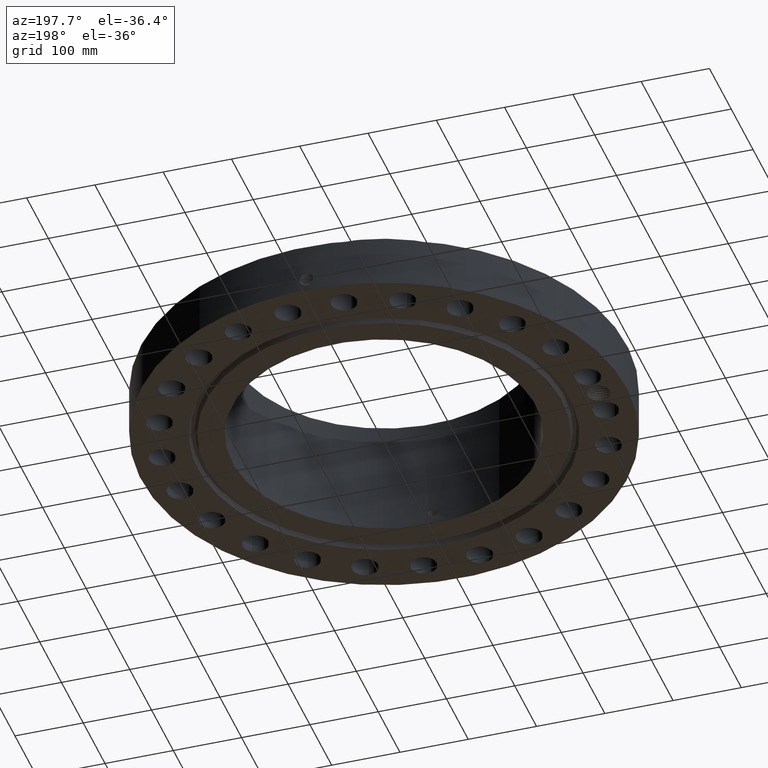
[diagram: clean part render]
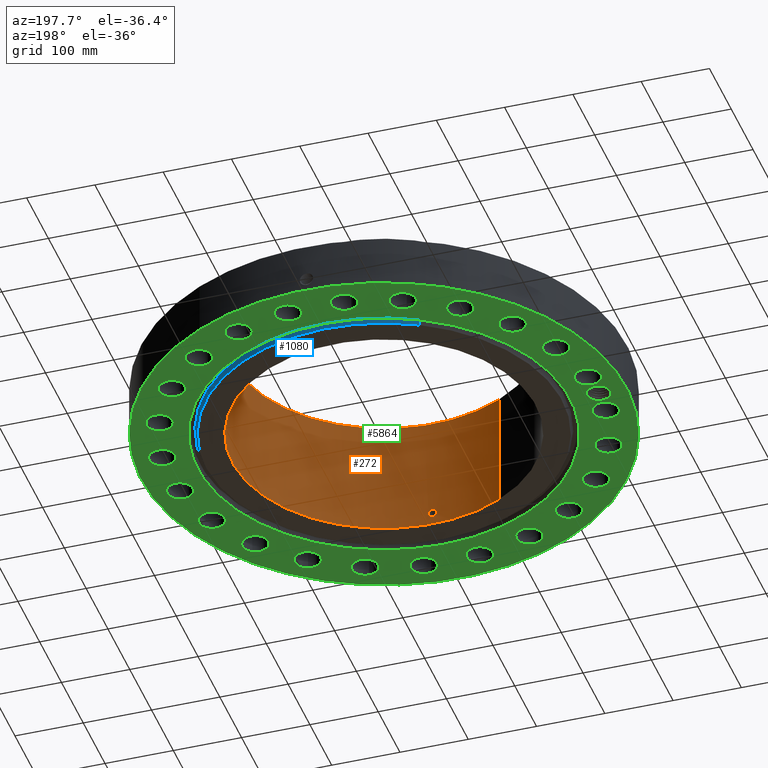
[diagram: same view with three faces highlighted in distinct colors, each labeled with its STEP entity id]
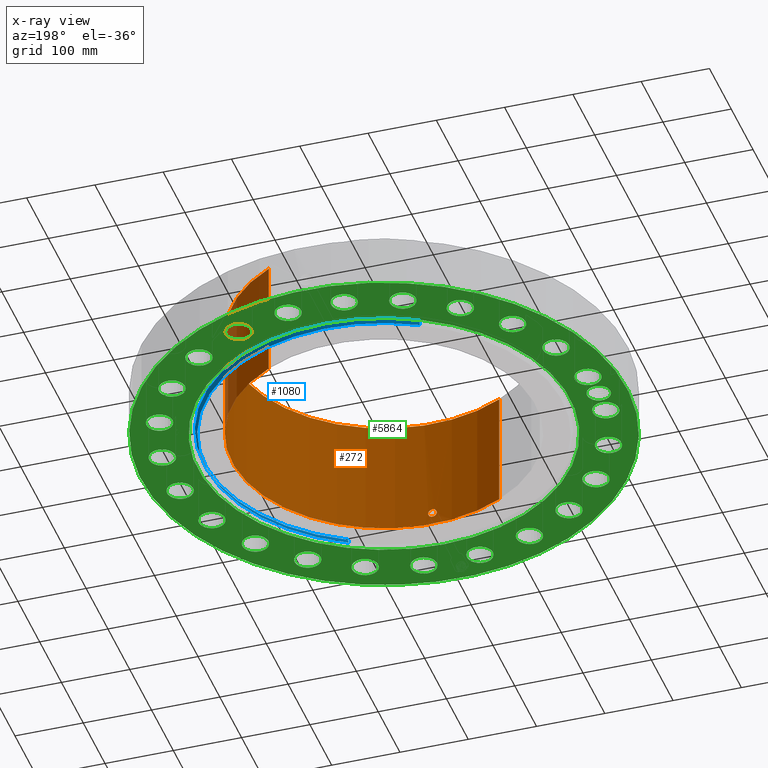
[diagram: x-ray of the same camera — body ghosted, the three highlighted faces saturated]
A machine part, auxiliary view with three faces highlighted in distinct colors.
The next image is the same camera in x-ray (body ghosted, the three faces saturated) — at least one of them is partly hidden behind the body in this view.
Their STEP definitions:

[orange] entity #272 — the highlighted cylindrical surface (partial cylindrical patch) has radius 222.25 mm, axis along (0, 0, -1).
#232=AXIS2_PLACEMENT_3D('Cylinder Axis2P3D',#229,#230,#231) ;
#236=AXIS2_PLACEMENT_3D('Circle Axis2P3D',#234,#235,$) ;
#252=AXIS2_PLACEMENT_3D('Circle Axis2P3D',#250,#251,$) ;
#81=CARTESIAN_POINT('Control Point',(0.219395640473,-8.74724902775,0.630143615351)) ;
#82=CARTESIAN_POINT('Control Point',(0.194443068215,-8.74787488001,0.584468238207)) ;
#83=CARTESIAN_POINT('Control Point',(0.157605411722,-8.74870979614,0.545288576823)) ;
#84=CARTESIAN_POINT('Control Point',(0.111108390081,-8.74952178194,0.516757099863)) ;
#85=CARTESIAN_POINT('Control Point',(0.0336737818535,-8.75016782476,0.494117474229)) ;
#86=CARTESIAN_POINT('Control Point',(-0.0446708320962,-8.74994457885,0.501943590949)) ;
#87=CARTESIAN_POINT('Control Point',(-0.0703005140155,-8.74977127194,0.50795617086)) ;
#88=CARTESIAN_POINT('Control Point',(-0.143956505793,-8.74900541131,0.535788017715)) ;
#89=CARTESIAN_POINT('Control Point',(-0.20324412424,-8.74775531117,0.590502433181)) ;
#90=CARTESIAN_POINT('Control Point',(-0.232209408005,-8.74693537828,0.636741442085)) ;
#91=CARTESIAN_POINT('Control Point',(-0.255840465174,-8.7462613379,0.714888138529)) ;
#92=CARTESIAN_POINT('Control Point',(-0.248282858358,-8.74647673032,0.794252980592)) ;
#93=CARTESIAN_POINT('Control Point',(-0.242049088894,-8.7466569734,0.820815555471)) ;
#94=CARTESIAN_POINT('Control Point',(-0.232315522118,-8.74692497551,0.846206699938)) ;
#95=CARTESIAN_POINT('Control Point',(-0.219395640473,-8.74724902775,0.869856384655)) ;
#96=CARTESIAN_POINT('Vertex',(0.219395640473,-8.74724902775,0.630143615351)) ;
#98=CARTESIAN_POINT('Vertex',(-0.219395640473,-8.74724902775,0.869856384655)) ;
#206=CARTESIAN_POINT('Control Point',(-0.219395640473,-8.74724902775,0.869856384655)) ;
#207=CARTESIAN_POINT('Control Point',(-0.194443068215,-8.74787488001,0.915531761799)) ;
#208=CARTESIAN_POINT('Control Point',(-0.157605411722,-8.74870979614,0.954711423182)) ;
#209=CARTESIAN_POINT('Control Point',(-0.111108390079,-8.74952178194,0.983242900143)) ;
#210=CARTESIAN_POINT('Control Point',(-0.0336737818526,-8.75016782476,1.00588252578)) ;
#211=CARTESIAN_POINT('Control Point',(0.0446708320958,-8.74994457885,0.998056409057)) ;
#212=CARTESIAN_POINT('Control Point',(0.0703005140179,-8.74977127194,0.992043829145)) ;
#213=CARTESIAN_POINT('Control Point',(0.143956505788,-8.74900541131,0.964211982292)) ;
#214=CARTESIAN_POINT('Control Point',(0.203244124231,-8.74775531117,0.909497566833)) ;
#215=CARTESIAN_POINT('Control Point',(0.23220940801,-8.74693537828,0.863258557908)) ;
#216=CARTESIAN_POINT('Control Point',(0.255840465151,-8.7462613379,0.785111861543)) ;
#217=CARTESIAN_POINT('Control Point',(0.248282858372,-8.74647673032,0.705747019562)) ;
#218=CARTESIAN_POINT('Control Point',(0.24204908884,-8.7466569734,0.679184444395)) ;
#219=CARTESIAN_POINT('Control Point',(0.232315522083,-8.74692497551,0.653793300003)) ;
#220=CARTESIAN_POINT('Control Point',(0.219395640473,-8.74724902775,0.630143615351)) ;
#229=CARTESIAN_POINT('Axis2P3D Location',(0.,0.,3.40600000001)) ;
#234=CARTESIAN_POINT('Axis2P3D Location',(0.,0.,6.81200000003)) ;
#238=CARTESIAN_POINT('Vertex',(4.1949734628,7.67884741657,6.81200000003)) ;
#240=CARTESIAN_POINT('Vertex',(-4.1949734628,-7.67884741657,6.81200000003)) ;
#243=CARTESIAN_POINT('Line Origine',(4.1949734628,7.67884741657,3.40600000001)) ;
#247=CARTESIAN_POINT('Vertex',(4.1949734628,7.67884741657,-4.58775624664E-014)) ;
#250=CARTESIAN_POINT('Axis2P3D Location',(0.,0.,-4.69965274046E-014)) ;
#254=CARTESIAN_POINT('Vertex',(-4.1949734628,-7.67884741657,-4.58775624664E-014)) ;
#257=CARTESIAN_POINT('Line Origine',(-4.1949734628,-7.67884741657,3.40600000001)) ;
#230=DIRECTION('Axis2P3D Direction',(0.,0.,-0.0393700787402)) ;
#231=DIRECTION('Axis2P3D XDirection',(-0.0188750212049,-0.0345504945626,0.)) ;
#235=DIRECTION('Axis2P3D Direction',(0.,0.,-0.0393700787402)) ;
#244=DIRECTION('Vector Direction',(0.,0.,-0.0393700787402)) ;
#251=DIRECTION('Axis2P3D Direction',(0.,0.,-0.0393700787402)) ;
#258=DIRECTION('Vector Direction',(0.,0.,-0.0393700787402)) ;
#245=VECTOR('Line Direction',#244,0.0393700787402) ;
#259=VECTOR('Line Direction',#258,0.0393700787402) ;
#263=ORIENTED_EDGE('',*,*,#242,.F.) ;
#264=ORIENTED_EDGE('',*,*,#249,.T.) ;
#265=ORIENTED_EDGE('',*,*,#256,.T.) ;
#266=ORIENTED_EDGE('',*,*,#261,.F.) ;
#269=ORIENTED_EDGE('',*,*,#100,.F.) ;
#270=ORIENTED_EDGE('',*,*,#221,.F.) ;
#271=FACE_BOUND('',#268,.T.) ;
#272=ADVANCED_FACE('PartBody',(#267,#271),#233,.F.) ;
#80=B_SPLINE_CURVE_WITH_KNOTS('',5,(#81,#82,#83,#84,#85,#86,#87,#88,#89,#90,#91,#92,#93,#94,#95),.UNSPECIFIED.,.F.,.U.,(6,3,3,3,6),(0.,9.34855036569,14.022859523,23.3728957243,28.2133651967),.UNSPECIFIED.) ;
#205=B_SPLINE_CURVE_WITH_KNOTS('',5,(#206,#207,#208,#209,#210,#211,#212,#213,#214,#215,#216,#217,#218,#219,#220),.UNSPECIFIED.,.F.,.U.,(6,3,3,3,6),(0.,9.34855036562,14.0228595228,23.372895723,28.213365182),.UNSPECIFIED.) ;
#237=CIRCLE('generated circle',#236,8.75000000003) ;
#253=CIRCLE('generated circle',#252,8.75000000003) ;
#233=CYLINDRICAL_SURFACE('generated cylinder',#232,8.75000000003) ;
#100=EDGE_CURVE('',#97,#99,#80,.T.) ;
#221=EDGE_CURVE('',#99,#97,#205,.T.) ;
#242=EDGE_CURVE('',#239,#241,#237,.T.) ;
#249=EDGE_CURVE('',#239,#248,#246,.T.) ;
#256=EDGE_CURVE('',#248,#255,#253,.T.) ;
#261=EDGE_CURVE('',#241,#255,#260,.T.) ;
#262=EDGE_LOOP('',(#263,#264,#265,#266)) ;
#268=EDGE_LOOP('',(#269,#270)) ;
#267=FACE_OUTER_BOUND('',#262,.T.) ;
#246=LINE('Line',#243,#245) ;
#260=LINE('Line',#257,#259) ;
#97=VERTEX_POINT('',#96) ;
#99=VERTEX_POINT('',#98) ;
#239=VERTEX_POINT('',#238) ;
#241=VERTEX_POINT('',#240) ;
#248=VERTEX_POINT('',#247) ;
#255=VERTEX_POINT('',#254) ;

[blue] entity #1080 — the highlighted conical surface has half-angle 23 deg.
#602=AXIS2_PLACEMENT_3D('Circle Axis2P3D',#600,#601,$) ;
#1053=AXIS2_PLACEMENT_3D('Cone Axis2P3D',#1050,#1051,#1052) ;
#1064=AXIS2_PLACEMENT_3D('Circle Axis2P3D',#1062,#1063,$) ;
#600=CARTESIAN_POINT('Axis2P3D Location',(1.1189649382E-015,1.1189649382E-015,0.)) ;
#604=CARTESIAN_POINT('Vertex',(-4.92154286656,9.00882378912,-3.49676543189E-017)) ;
#606=CARTESIAN_POINT('Vertex',(4.92154286656,-9.00882378912,0.)) ;
#1050=CARTESIAN_POINT('Axis2P3D Location',(0.,0.,-0.0600000000002)) ;
#1055=CARTESIAN_POINT('Line Origine',(-4.95142967067,9.06353121709,0.146860966928)) ;
#1059=CARTESIAN_POINT('Vertex',(-4.98131647478,9.11823864505,0.293721933856)) ;
#1062=CARTESIAN_POINT('Axis2P3D Location',(0.,0.,0.293721933856)) ;
#1066=CARTESIAN_POINT('Vertex',(4.98131647478,-9.11823864505,0.293721933856)) ;
#1069=CARTESIAN_POINT('Line Origine',(4.95142967067,-9.06353121709,0.146860966928)) ;
#601=DIRECTION('Axis2P3D Direction',(0.,0.,-0.0393700787402)) ;
#1051=DIRECTION('Axis2P3D Direction',(0.,0.,0.0393700787402)) ;
#1052=DIRECTION('Axis2P3D XDirection',(-0.0188750212049,0.0345504945626,0.)) ;
#1056=DIRECTION('Vector Direction',(-0.00737505833565,0.0134999537303,0.0362403485611)) ;
#1063=DIRECTION('Axis2P3D Direction',(0.,0.,0.0393700787402)) ;
#1070=DIRECTION('Vector Direction',(0.00737505833565,-0.0134999537303,0.0362403485611)) ;
#1057=VECTOR('Line Direction',#1056,0.0393700787402) ;
#1071=VECTOR('Line Direction',#1070,0.0393700787402) ;
#1075=ORIENTED_EDGE('',*,*,#1061,.F.) ;
#1076=ORIENTED_EDGE('',*,*,#1068,.F.) ;
#1077=ORIENTED_EDGE('',*,*,#1073,.T.) ;
#1078=ORIENTED_EDGE('',*,*,#608,.F.) ;
#1080=ADVANCED_FACE('PartBody',(#1079),#1054,.T.) ;
#603=CIRCLE('generated circle',#602,10.2655) ;
#1065=CIRCLE('generated circle',#1064,10.3901775639) ;
#1054=CONICAL_SURFACE('Cone',#1053,10.2400315111,0.401425727959) ;
#608=EDGE_CURVE('',#605,#607,#603,.T.) ;
#1061=EDGE_CURVE('',#1060,#605,#1058,.F.) ;
#1068=EDGE_CURVE('',#1067,#1060,#1065,.T.) ;
#1073=EDGE_CURVE('',#1067,#607,#1072,.F.) ;
#1074=EDGE_LOOP('',(#1075,#1076,#1077,#1078)) ;
#1079=FACE_OUTER_BOUND('',#1074,.T.) ;
#1058=LINE('Line',#1055,#1057) ;
#1072=LINE('Line',#1069,#1071) ;
#605=VERTEX_POINT('',#604) ;
#607=VERTEX_POINT('',#606) ;
#1060=VERTEX_POINT('',#1059) ;
#1067=VERTEX_POINT('',#1066) ;

[green] entity #5864 — the highlighted planar face has unit normal (0, 0, -1).
#598=AXIS2_PLACEMENT_3D('Plane Axis2P3D',#595,#596,#597) ;
#3756=AXIS2_PLACEMENT_3D('Circle Axis2P3D',#3754,#3755,$) ;
#3782=AXIS2_PLACEMENT_3D('Circle Axis2P3D',#3780,#3781,$) ;
#4055=AXIS2_PLACEMENT_3D('Circle Axis2P3D',#4053,#4054,$) ;
#4168=AXIS2_PLACEMENT_3D('Circle Axis2P3D',#4166,#4167,$) ;
#4390=AXIS2_PLACEMENT_3D('Circle Axis2P3D',#4388,#4389,$) ;
#4409=AXIS2_PLACEMENT_3D('Circle Axis2P3D',#4407,#4408,$) ;
#4433=AXIS2_PLACEMENT_3D('Circle Axis2P3D',#4431,#4432,$) ;
#4452=AXIS2_PLACEMENT_3D('Circle Axis2P3D',#4450,#4451,$) ;
#4476=AXIS2_PLACEMENT_3D('Circle Axis2P3D',#4474,#4475,$) ;
#4495=AXIS2_PLACEMENT_3D('Circle Axis2P3D',#4493,#4494,$) ;
#4519=AXIS2_PLACEMENT_3D('Circle Axis2P3D',#4517,#4518,$) ;
#4538=AXIS2_PLACEMENT_3D('Circle Axis2P3D',#4536,#4537,$) ;
#4562=AXIS2_PLACEMENT_3D('Circle Axis2P3D',#4560,#4561,$) ;
#4581=AXIS2_PLACEMENT_3D('Circle Axis2P3D',#4579,#4580,$) ;
#4605=AXIS2_PLACEMENT_3D('Circle Axis2P3D',#4603,#4604,$) ;
#4624=AXIS2_PLACEMENT_3D('Circle Axis2P3D',#4622,#4623,$) ;
#4648=AXIS2_PLACEMENT_3D('Circle Axis2P3D',#4646,#4647,$) ;
#4667=AXIS2_PLACEMENT_3D('Circle Axis2P3D',#4665,#4666,$) ;
#4691=AXIS2_PLACEMENT_3D('Circle Axis2P3D',#4689,#4690,$) ;
#4710=AXIS2_PLACEMENT_3D('Circle Axis2P3D',#4708,#4709,$) ;
#4734=AXIS2_PLACEMENT_3D('Circle Axis2P3D',#4732,#4733,$) ;
#4753=AXIS2_PLACEMENT_3D('Circle Axis2P3D',#4751,#4752,$) ;
#4777=AXIS2_PLACEMENT_3D('Circle Axis2P3D',#4775,#4776,$) ;
#4796=AXIS2_PLACEMENT_3D('Circle Axis2P3D',#4794,#4795,$) ;
#4820=AXIS2_PLACEMENT_3D('Circle Axis2P3D',#4818,#4819,$) ;
#4839=AXIS2_PLACEMENT_3D('Circle Axis2P3D',#4837,#4838,$) ;
#4863=AXIS2_PLACEMENT_3D('Circle Axis2P3D',#4861,#4862,$) ;
#4882=AXIS2_PLACEMENT_3D('Circle Axis2P3D',#4880,#4881,$) ;
#4906=AXIS2_PLACEMENT_3D('Circle Axis2P3D',#4904,#4905,$) ;
#4925=AXIS2_PLACEMENT_3D('Circle Axis2P3D',#4923,#4924,$) ;
#4949=AXIS2_PLACEMENT_3D('Circle Axis2P3D',#4947,#4948,$) ;
#4968=AXIS2_PLACEMENT_3D('Circle Axis2P3D',#4966,#4967,$) ;
#4992=AXIS2_PLACEMENT_3D('Circle Axis2P3D',#4990,#4991,$) ;
#5011=AXIS2_PLACEMENT_3D('Circle Axis2P3D',#5009,#5010,$) ;
#5035=AXIS2_PLACEMENT_3D('Circle Axis2P3D',#5033,#5034,$) ;
#5054=AXIS2_PLACEMENT_3D('Circle Axis2P3D',#5052,#5053,$) ;
#5078=AXIS2_PLACEMENT_3D('Circle Axis2P3D',#5076,#5077,$) ;
#5097=AXIS2_PLACEMENT_3D('Circle Axis2P3D',#5095,#5096,$) ;
#5121=AXIS2_PLACEMENT_3D('Circle Axis2P3D',#5119,#5120,$) ;
#5140=AXIS2_PLACEMENT_3D('Circle Axis2P3D',#5138,#5139,$) ;
#5164=AXIS2_PLACEMENT_3D('Circle Axis2P3D',#5162,#5163,$) ;
#5183=AXIS2_PLACEMENT_3D('Circle Axis2P3D',#5181,#5182,$) ;
#5207=AXIS2_PLACEMENT_3D('Circle Axis2P3D',#5205,#5206,$) ;
#5226=AXIS2_PLACEMENT_3D('Circle Axis2P3D',#5224,#5225,$) ;
#5250=AXIS2_PLACEMENT_3D('Circle Axis2P3D',#5248,#5249,$) ;
#5269=AXIS2_PLACEMENT_3D('Circle Axis2P3D',#5267,#5268,$) ;
#5293=AXIS2_PLACEMENT_3D('Circle Axis2P3D',#5291,#5292,$) ;
#5312=AXIS2_PLACEMENT_3D('Circle Axis2P3D',#5310,#5311,$) ;
#5336=AXIS2_PLACEMENT_3D('Circle Axis2P3D',#5334,#5335,$) ;
#5355=AXIS2_PLACEMENT_3D('Circle Axis2P3D',#5353,#5354,$) ;
#5379=AXIS2_PLACEMENT_3D('Circle Axis2P3D',#5377,#5378,$) ;
#5398=AXIS2_PLACEMENT_3D('Circle Axis2P3D',#5396,#5397,$) ;
#5747=AXIS2_PLACEMENT_3D('Circle Axis2P3D',#5745,#5746,$) ;
#5754=AXIS2_PLACEMENT_3D('Circle Axis2P3D',#5752,#5753,$) ;
#595=CARTESIAN_POINT('Axis2P3D Location',(0.,8.75000000003,0.)) ;
#3754=CARTESIAN_POINT('Axis2P3D Location',(0.,0.,-3.49676543189E-017)) ;
#3758=CARTESIAN_POINT('Vertex',(-5.14639344417,9.42041001065,-3.49676543189E-017)) ;
#3760=CARTESIAN_POINT('Vertex',(5.14639344417,-9.42041001065,-3.49676543189E-017)) ;
#3780=CARTESIAN_POINT('Axis2P3D Location',(0.,0.,-3.49676543189E-017)) ;
#4053=CARTESIAN_POINT('Axis2P3D Location',(0.,0.,1.67844740731E-015)) ;
#4057=CARTESIAN_POINT('Vertex',(-6.71195754049,-12.2861558665,1.67844740731E-015)) ;
#4059=CARTESIAN_POINT('Vertex',(6.71195754049,12.2861558665,1.67844740731E-015)) ;
#4166=CARTESIAN_POINT('Axis2P3D Location',(0.,0.,1.67844740731E-015)) ;
#4385=CARTESIAN_POINT('Vertex',(12.927317081,-1.97483078268,0.)) ;
#4388=CARTESIAN_POINT('Axis2P3D Location',(12.2691301595,-1.61526162873,0.)) ;
#4392=CARTESIAN_POINT('Vertex',(11.6109432381,-1.25569247478,0.)) ;
#4407=CARTESIAN_POINT('Axis2P3D Location',(12.2691301595,-1.61526162873,0.)) ;
#4428=CARTESIAN_POINT('Vertex',(10.890312814,-4.21803903289,0.)) ;
#4431=CARTESIAN_POINT('Axis2P3D Location',(11.4330092149,-4.73570747554,0.)) ;
#4435=CARTESIAN_POINT('Vertex',(11.9757056157,-5.25337591818,0.)) ;
#4450=CARTESIAN_POINT('Axis2P3D Location',(11.4330092149,-4.73570747554,0.)) ;
#4471=CARTESIAN_POINT('Vertex',(9.42752556873,-6.89293320156,0.)) ;
#4474=CARTESIAN_POINT('Axis2P3D Location',(9.81774758614,-7.53342268401,0.)) ;
#4478=CARTESIAN_POINT('Vertex',(10.2079696036,-8.17391216647,0.)) ;
#4493=CARTESIAN_POINT('Axis2P3D Location',(9.81774758614,-7.53342268401,0.)) ;
#4514=CARTESIAN_POINT('Vertex',(7.32226803566,-9.09808536365,0.)) ;
#4517=CARTESIAN_POINT('Axis2P3D Location',(7.53342268401,-9.81774758614,0.)) ;
#4521=CARTESIAN_POINT('Vertex',(7.74457733237,-10.5374098086,0.)) ;
#4536=CARTESIAN_POINT('Axis2P3D Location',(7.53342268401,-9.81774758614,0.)) ;
#4557=CARTESIAN_POINT('Vertex',(4.71801003657,-10.6832180435,0.)) ;
#4560=CARTESIAN_POINT('Axis2P3D Location',(4.73570747554,-11.4330092149,0.)) ;
#4564=CARTESIAN_POINT('Vertex',(4.75340491451,-12.1828003862,0.)) ;
#4579=CARTESIAN_POINT('Axis2P3D Location',(4.73570747554,-11.4330092149,0.)) ;
#4600=CARTESIAN_POINT('Vertex',(1.79222745037,-11.5403070685,0.)) ;
#4603=CARTESIAN_POINT('Axis2P3D Location',(1.61526162873,-12.2691301595,0.)) ;
#4607=CARTESIAN_POINT('Vertex',(1.43829580709,-12.9979532506,0.)) ;
#4622=CARTESIAN_POINT('Axis2P3D Location',(1.61526162873,-12.2691301595,0.)) ;
#4643=CARTESIAN_POINT('Vertex',(-1.25569247478,-11.6109432381,0.)) ;
#4646=CARTESIAN_POINT('Axis2P3D Location',(-1.61526162873,-12.2691301595,0.)) ;
#4650=CARTESIAN_POINT('Vertex',(-1.97483078268,-12.927317081,0.)) ;
#4665=CARTESIAN_POINT('Axis2P3D Location',(-1.61526162873,-12.2691301595,0.)) ;
#4686=CARTESIAN_POINT('Vertex',(-4.21803903289,-10.890312814,0.)) ;
#4689=CARTESIAN_POINT('Axis2P3D Location',(-4.73570747554,-11.4330092149,-1.1189649382E-015)) ;
#4693=CARTESIAN_POINT('Vertex',(-5.25337591818,-11.9757056157,-1.1189649382E-015)) ;
#4708=CARTESIAN_POINT('Axis2P3D Location',(-4.73570747554,-11.4330092149,-1.1189649382E-015)) ;
#4729=CARTESIAN_POINT('Vertex',(-6.89293320156,-9.42752556873,0.)) ;
#4732=CARTESIAN_POINT('Axis2P3D Location',(-7.53342268401,-9.81774758614,-2.23792987641E-015)) ;
#4736=CARTESIAN_POINT('Vertex',(-8.17391216647,-10.2079696036,-2.23792987641E-015)) ;
#4751=CARTESIAN_POINT('Axis2P3D Location',(-7.53342268401,-9.81774758614,-2.23792987641E-015)) ;
#4772=CARTESIAN_POINT('Vertex',(-9.09808536365,-7.32226803566,0.)) ;
#4775=CARTESIAN_POINT('Axis2P3D Location',(-9.81774758614,-7.53342268401,0.)) ;
#4779=CARTESIAN_POINT('Vertex',(-10.5374098086,-7.74457733237,0.)) ;
#4794=CARTESIAN_POINT('Axis2P3D Location',(-9.81774758614,-7.53342268401,0.)) ;
#4815=CARTESIAN_POINT('Vertex',(-10.6832180435,-4.71801003657,0.)) ;
#4818=CARTESIAN_POINT('Axis2P3D Location',(-11.4330092149,-4.73570747554,0.)) ;
#4822=CARTESIAN_POINT('Vertex',(-12.1828003862,-4.75340491451,0.)) ;
#4837=CARTESIAN_POINT('Axis2P3D Location',(-11.4330092149,-4.73570747554,0.)) ;
#4858=CARTESIAN_POINT('Vertex',(-11.5403070685,-1.79222745037,0.)) ;
#4861=CARTESIAN_POINT('Axis2P3D Location',(-12.2691301595,-1.61526162873,0.)) ;
#4865=CARTESIAN_POINT('Vertex',(-12.9979532506,-1.43829580709,0.)) ;
#4880=CARTESIAN_POINT('Axis2P3D Location',(-12.2691301595,-1.61526162873,0.)) ;
#4901=CARTESIAN_POINT('Vertex',(-11.6109432381,1.25569247478,0.)) ;
#4904=CARTESIAN_POINT('Axis2P3D Location',(-12.2691301595,1.61526162873,0.)) ;
#4908=CARTESIAN_POINT('Vertex',(-12.927317081,1.97483078268,0.)) ;
#4923=CARTESIAN_POINT('Axis2P3D Location',(-12.2691301595,1.61526162873,0.)) ;
#4944=CARTESIAN_POINT('Vertex',(-10.890312814,4.21803903289,0.)) ;
#4947=CARTESIAN_POINT('Axis2P3D Location',(-11.4330092149,4.73570747554,0.)) ;
#4951=CARTESIAN_POINT('Vertex',(-11.9757056157,5.25337591818,0.)) ;
#4966=CARTESIAN_POINT('Axis2P3D Location',(-11.4330092149,4.73570747554,0.)) ;
#4987=CARTESIAN_POINT('Vertex',(-9.42752556873,6.89293320156,0.)) ;
#4990=CARTESIAN_POINT('Axis2P3D Location',(-9.81774758614,7.53342268401,0.)) ;
#4994=CARTESIAN_POINT('Vertex',(-10.2079696036,8.17391216647,0.)) ;
#5009=CARTESIAN_POINT('Axis2P3D Location',(-9.81774758614,7.53342268401,0.)) ;
#5030=CARTESIAN_POINT('Vertex',(-7.32226803566,9.09808536365,0.)) ;
#5033=CARTESIAN_POINT('Axis2P3D Location',(-7.53342268401,9.81774758614,0.)) ;
#5037=CARTESIAN_POINT('Vertex',(-7.74457733237,10.5374098086,0.)) ;
#5052=CARTESIAN_POINT('Axis2P3D Location',(-7.53342268401,9.81774758614,0.)) ;
#5073=CARTESIAN_POINT('Vertex',(-4.71801003657,10.6832180435,0.)) ;
#5076=CARTESIAN_POINT('Axis2P3D Location',(-4.73570747554,11.4330092149,0.)) ;
#5080=CARTESIAN_POINT('Vertex',(-4.75340491451,12.1828003862,0.)) ;
#5095=CARTESIAN_POINT('Axis2P3D Location',(-4.73570747554,11.4330092149,0.)) ;
#5116=CARTESIAN_POINT('Vertex',(-1.79222745037,11.5403070685,0.)) ;
#5119=CARTESIAN_POINT('Axis2P3D Location',(-1.61526162873,12.2691301595,0.)) ;
#5123=CARTESIAN_POINT('Vertex',(-1.43829580709,12.9979532506,0.)) ;
#5138=CARTESIAN_POINT('Axis2P3D Location',(-1.61526162873,12.2691301595,0.)) ;
#5159=CARTESIAN_POINT('Vertex',(1.25569247478,11.6109432381,0.)) ;
#5162=CARTESIAN_POINT('Axis2P3D Location',(1.61526162873,12.2691301595,0.)) ;
#5166=CARTESIAN_POINT('Vertex',(1.97483078268,12.927317081,0.)) ;
#5181=CARTESIAN_POINT('Axis2P3D Location',(1.61526162873,12.2691301595,0.)) ;
#5202=CARTESIAN_POINT('Vertex',(4.21803903289,10.890312814,0.)) ;
#5205=CARTESIAN_POINT('Axis2P3D Location',(4.73570747554,11.4330092149,0.)) ;
#5209=CARTESIAN_POINT('Vertex',(5.25337591818,11.9757056157,0.)) ;
#5224=CARTESIAN_POINT('Axis2P3D Location',(4.73570747554,11.4330092149,0.)) ;
#5245=CARTESIAN_POINT('Vertex',(6.89293320156,9.42752556873,0.)) ;
#5248=CARTESIAN_POINT('Axis2P3D Location',(7.53342268401,9.81774758614,0.)) ;
#5252=CARTESIAN_POINT('Vertex',(8.17391216647,10.2079696036,0.)) ;
#5267=CARTESIAN_POINT('Axis2P3D Location',(7.53342268401,9.81774758614,0.)) ;
#5288=CARTESIAN_POINT('Vertex',(9.09808536365,7.32226803566,0.)) ;
#5291=CARTESIAN_POINT('Axis2P3D Location',(9.81774758614,7.53342268401,0.)) ;
#5295=CARTESIAN_POINT('Vertex',(10.5374098086,7.74457733237,0.)) ;
#5310=CARTESIAN_POINT('Axis2P3D Location',(9.81774758614,7.53342268401,0.)) ;
#5331=CARTESIAN_POINT('Vertex',(10.6832180435,4.71801003657,0.)) ;
#5334=CARTESIAN_POINT('Axis2P3D Location',(11.4330092149,4.73570747554,0.)) ;
#5338=CARTESIAN_POINT('Vertex',(12.1828003862,4.75340491451,0.)) ;
#5353=CARTESIAN_POINT('Axis2P3D Location',(11.4330092149,4.73570747554,0.)) ;
#5374=CARTESIAN_POINT('Vertex',(11.5403070685,1.79222745037,0.)) ;
#5377=CARTESIAN_POINT('Axis2P3D Location',(12.2691301595,1.61526162873,0.)) ;
#5381=CARTESIAN_POINT('Vertex',(12.9979532506,1.43829580709,0.)) ;
#5396=CARTESIAN_POINT('Axis2P3D Location',(12.2691301595,1.61526162873,0.)) ;
#5708=CARTESIAN_POINT('Control Point',(-12.959001407,0.362789949858,0.)) ;
#5709=CARTESIAN_POINT('Control Point',(-12.9229512484,0.416338332797,0.)) ;
#5710=CARTESIAN_POINT('Control Point',(-12.8806959271,0.465523733597,0.)) ;
#5711=CARTESIAN_POINT('Control Point',(-12.832916247,0.509386498363,0.)) ;
#5712=CARTESIAN_POINT('Control Point',(-12.7531425659,0.566848884635,0.)) ;
#5713=CARTESIAN_POINT('Control Point',(-12.6651104637,0.608800367591,0.)) ;
#5714=CARTESIAN_POINT('Control Point',(-12.6340596939,0.621295612324,0.)) ;
#5715=CARTESIAN_POINT('Control Point',(-12.6023444258,0.631819142656,0.)) ;
#5716=CARTESIAN_POINT('Control Point',(-12.5701308143,0.640328294965,0.)) ;
#5717=CARTESIAN_POINT('Vertex',(-12.959001407,0.362789949858,1.52983487645E-017)) ;
#5719=CARTESIAN_POINT('Vertex',(-12.5701308143,0.640328294965,0.)) ;
#5723=CARTESIAN_POINT('Control Point',(-12.959001407,0.362789949858,0.)) ;
#5724=CARTESIAN_POINT('Control Point',(-12.9910045595,0.306801546746,0.)) ;
#5725=CARTESIAN_POINT('Control Point',(-13.0163825057,0.247149668806,0.)) ;
#5726=CARTESIAN_POINT('Control Point',(-13.0345541763,0.18485762431,0.)) ;
#5727=CARTESIAN_POINT('Control Point',(-13.0470947377,0.109605806249,0.)) ;
#5728=CARTESIAN_POINT('Control Point',(-13.049057122,0.0340197360062,0.)) ;
#5729=CARTESIAN_POINT('Control Point',(-13.0491096856,0.0224606649154,0.)) ;
#5730=CARTESIAN_POINT('Control Point',(-13.0489149061,0.0109173725655,0.)) ;
#5731=CARTESIAN_POINT('Control Point',(-13.0484732257,-0.000612033395293,0.)) ;
#5732=CARTESIAN_POINT('Vertex',(-13.0484732257,-0.000612033395291,-2.18547839493E-018)) ;
#5736=CARTESIAN_POINT('Control Point',(-13.0484732257,-0.000612033395291,0.)) ;
#5737=CARTESIAN_POINT('Control Point',(-13.0476400088,-0.0223619147668,0.)) ;
#5738=CARTESIAN_POINT('Control Point',(-13.0459281293,-0.0440623629938,0.)) ;
#5739=CARTESIAN_POINT('Control Point',(-13.0433401576,-0.0656655865224,0.)) ;
#5740=CARTESIAN_POINT('Control Point',(-13.0398827131,-0.0871240343997,0.)) ;
#5741=CARTESIAN_POINT('Control Point',(-13.0355662302,-0.108391031219,0.)) ;
#5742=CARTESIAN_POINT('Vertex',(-13.0355662302,-0.108391031219,0.)) ;
#5745=CARTESIAN_POINT('Axis2P3D Location',(-12.375,1.1189649382E-015,0.)) ;
#5749=CARTESIAN_POINT('Vertex',(-11.7875462331,-0.320927455543,0.)) ;
#5752=CARTESIAN_POINT('Axis2P3D Location',(-12.375,1.1189649382E-015,0.)) ;
#596=DIRECTION('Axis2P3D Direction',(0.,0.,-0.0393700787402)) ;
#597=DIRECTION('Axis2P3D XDirection',(0.0393700787402,0.,0.)) ;
#3755=DIRECTION('Axis2P3D Direction',(0.,0.,-0.0393700787402)) ;
#3781=DIRECTION('Axis2P3D Direction',(0.,0.,-0.0393700787402)) ;
#4054=DIRECTION('Axis2P3D Direction',(0.,0.,-0.0393700787402)) ;
#4167=DIRECTION('Axis2P3D Direction',(0.,0.,-0.0393700787402)) ;
#4389=DIRECTION('Axis2P3D Direction',(0.,-0.,-0.0393700787402)) ;
#4408=DIRECTION('Axis2P3D Direction',(0.,-0.,-0.0393700787402)) ;
#4432=DIRECTION('Axis2P3D Direction',(0.,-0.,-0.0393700787402)) ;
#4451=DIRECTION('Axis2P3D Direction',(0.,-0.,-0.0393700787402)) ;
#4475=DIRECTION('Axis2P3D Direction',(0.,-0.,-0.0393700787402)) ;
#4494=DIRECTION('Axis2P3D Direction',(0.,-0.,-0.0393700787402)) ;
#4518=DIRECTION('Axis2P3D Direction',(0.,-0.,-0.0393700787402)) ;
#4537=DIRECTION('Axis2P3D Direction',(0.,-0.,-0.0393700787402)) ;
#4561=DIRECTION('Axis2P3D Direction',(0.,-0.,-0.0393700787402)) ;
#4580=DIRECTION('Axis2P3D Direction',(0.,-0.,-0.0393700787402)) ;
#4604=DIRECTION('Axis2P3D Direction',(0.,-0.,-0.0393700787402)) ;
#4623=DIRECTION('Axis2P3D Direction',(0.,-0.,-0.0393700787402)) ;
#4647=DIRECTION('Axis2P3D Direction',(0.,-0.,-0.0393700787402)) ;
#4666=DIRECTION('Axis2P3D Direction',(0.,-0.,-0.0393700787402)) ;
#4690=DIRECTION('Axis2P3D Direction',(-0.,0.,-0.0393700787402)) ;
#4709=DIRECTION('Axis2P3D Direction',(-0.,0.,-0.0393700787402)) ;
#4733=DIRECTION('Axis2P3D Direction',(-0.,0.,-0.0393700787402)) ;
#4752=DIRECTION('Axis2P3D Direction',(-0.,0.,-0.0393700787402)) ;
#4776=DIRECTION('Axis2P3D Direction',(-0.,0.,-0.0393700787402)) ;
#4795=DIRECTION('Axis2P3D Direction',(-0.,0.,-0.0393700787402)) ;
#4819=DIRECTION('Axis2P3D Direction',(-0.,0.,-0.0393700787402)) ;
#4838=DIRECTION('Axis2P3D Direction',(-0.,0.,-0.0393700787402)) ;
#4862=DIRECTION('Axis2P3D Direction',(-0.,0.,-0.0393700787402)) ;
#4881=DIRECTION('Axis2P3D Direction',(-0.,0.,-0.0393700787402)) ;
#4905=DIRECTION('Axis2P3D Direction',(-0.,0.,-0.0393700787402)) ;
#4924=DIRECTION('Axis2P3D Direction',(-0.,0.,-0.0393700787402)) ;
#4948=DIRECTION('Axis2P3D Direction',(0.,0.,-0.0393700787402)) ;
#4967=DIRECTION('Axis2P3D Direction',(0.,0.,-0.0393700787402)) ;
#4991=DIRECTION('Axis2P3D Direction',(0.,0.,-0.0393700787402)) ;
#5010=DIRECTION('Axis2P3D Direction',(0.,0.,-0.0393700787402)) ;
#5034=DIRECTION('Axis2P3D Direction',(0.,0.,-0.0393700787402)) ;
#5053=DIRECTION('Axis2P3D Direction',(0.,0.,-0.0393700787402)) ;
#5077=DIRECTION('Axis2P3D Direction',(0.,0.,-0.0393700787402)) ;
#5096=DIRECTION('Axis2P3D Direction',(0.,0.,-0.0393700787402)) ;
#5120=DIRECTION('Axis2P3D Direction',(0.,0.,-0.0393700787402)) ;
#5139=DIRECTION('Axis2P3D Direction',(0.,0.,-0.0393700787402)) ;
#5163=DIRECTION('Axis2P3D Direction',(0.,0.,-0.0393700787402)) ;
#5182=DIRECTION('Axis2P3D Direction',(0.,0.,-0.0393700787402)) ;
#5206=DIRECTION('Axis2P3D Direction',(0.,0.,-0.0393700787402)) ;
#5225=DIRECTION('Axis2P3D Direction',(0.,0.,-0.0393700787402)) ;
#5249=DIRECTION('Axis2P3D Direction',(0.,0.,-0.0393700787402)) ;
#5268=DIRECTION('Axis2P3D Direction',(0.,0.,-0.0393700787402)) ;
#5292=DIRECTION('Axis2P3D Direction',(0.,0.,-0.0393700787402)) ;
#5311=DIRECTION('Axis2P3D Direction',(0.,0.,-0.0393700787402)) ;
#5335=DIRECTION('Axis2P3D Direction',(0.,0.,-0.0393700787402)) ;
#5354=DIRECTION('Axis2P3D Direction',(0.,0.,-0.0393700787402)) ;
#5378=DIRECTION('Axis2P3D Direction',(0.,0.,-0.0393700787402)) ;
#5397=DIRECTION('Axis2P3D Direction',(0.,0.,-0.0393700787402)) ;
#5746=DIRECTION('Axis2P3D Direction',(0.,0.,-0.0393700787402)) ;
#5753=DIRECTION('Axis2P3D Direction',(0.,0.,-0.0393700787402)) ;
#5704=ORIENTED_EDGE('',*,*,#4061,.T.) ;
#5705=ORIENTED_EDGE('',*,*,#4170,.T.) ;
#5758=ORIENTED_EDGE('',*,*,#5721,.F.) ;
#5759=ORIENTED_EDGE('',*,*,#5734,.T.) ;
#5760=ORIENTED_EDGE('',*,*,#5744,.T.) ;
#5761=ORIENTED_EDGE('',*,*,#5751,.F.) ;
#5762=ORIENTED_EDGE('',*,*,#5756,.F.) ;
#5765=ORIENTED_EDGE('',*,*,#4394,.F.) ;
#5766=ORIENTED_EDGE('',*,*,#4411,.F.) ;
#5769=ORIENTED_EDGE('',*,*,#4437,.F.) ;
#5770=ORIENTED_EDGE('',*,*,#4454,.F.) ;
#5773=ORIENTED_EDGE('',*,*,#4480,.F.) ;
#5774=ORIENTED_EDGE('',*,*,#4497,.F.) ;
#5777=ORIENTED_EDGE('',*,*,#4523,.F.) ;
#5778=ORIENTED_EDGE('',*,*,#4540,.F.) ;
#5781=ORIENTED_EDGE('',*,*,#4566,.F.) ;
#5782=ORIENTED_EDGE('',*,*,#4583,.F.) ;
#5785=ORIENTED_EDGE('',*,*,#4609,.F.) ;
#5786=ORIENTED_EDGE('',*,*,#4626,.F.) ;
#5789=ORIENTED_EDGE('',*,*,#4652,.F.) ;
#5790=ORIENTED_EDGE('',*,*,#4669,.F.) ;
#5793=ORIENTED_EDGE('',*,*,#4695,.F.) ;
#5794=ORIENTED_EDGE('',*,*,#4712,.F.) ;
#5797=ORIENTED_EDGE('',*,*,#4738,.F.) ;
#5798=ORIENTED_EDGE('',*,*,#4755,.F.) ;
#5801=ORIENTED_EDGE('',*,*,#4781,.F.) ;
#5802=ORIENTED_EDGE('',*,*,#4798,.F.) ;
#5805=ORIENTED_EDGE('',*,*,#4824,.F.) ;
#5806=ORIENTED_EDGE('',*,*,#4841,.F.) ;
#5809=ORIENTED_EDGE('',*,*,#4867,.F.) ;
#5810=ORIENTED_EDGE('',*,*,#4884,.F.) ;
#5813=ORIENTED_EDGE('',*,*,#4910,.F.) ;
#5814=ORIENTED_EDGE('',*,*,#4927,.F.) ;
#5817=ORIENTED_EDGE('',*,*,#4953,.F.) ;
#5818=ORIENTED_EDGE('',*,*,#4970,.F.) ;
#5821=ORIENTED_EDGE('',*,*,#4996,.F.) ;
#5822=ORIENTED_EDGE('',*,*,#5013,.F.) ;
#5825=ORIENTED_EDGE('',*,*,#5039,.F.) ;
#5826=ORIENTED_EDGE('',*,*,#5056,.F.) ;
#5829=ORIENTED_EDGE('',*,*,#5082,.F.) ;
#5830=ORIENTED_EDGE('',*,*,#5099,.F.) ;
#5833=ORIENTED_EDGE('',*,*,#5125,.F.) ;
#5834=ORIENTED_EDGE('',*,*,#5142,.F.) ;
#5837=ORIENTED_EDGE('',*,*,#5168,.F.) ;
#5838=ORIENTED_EDGE('',*,*,#5185,.F.) ;
#5841=ORIENTED_EDGE('',*,*,#5211,.F.) ;
#5842=ORIENTED_EDGE('',*,*,#5228,.F.) ;
#5845=ORIENTED_EDGE('',*,*,#5254,.F.) ;
#5846=ORIENTED_EDGE('',*,*,#5271,.F.) ;
#5849=ORIENTED_EDGE('',*,*,#5297,.F.) ;
#5850=ORIENTED_EDGE('',*,*,#5314,.F.) ;
#5853=ORIENTED_EDGE('',*,*,#5340,.F.) ;
#5854=ORIENTED_EDGE('',*,*,#5357,.F.) ;
#5857=ORIENTED_EDGE('',*,*,#5383,.F.) ;
#5858=ORIENTED_EDGE('',*,*,#5400,.F.) ;
#5861=ORIENTED_EDGE('',*,*,#3784,.F.) ;
#5862=ORIENTED_EDGE('',*,*,#3762,.F.) ;
#5763=FACE_BOUND('',#5757,.T.) ;
#5767=FACE_BOUND('',#5764,.T.) ;
#5771=FACE_BOUND('',#5768,.T.) ;
#5775=FACE_BOUND('',#5772,.T.) ;
#5779=FACE_BOUND('',#5776,.T.) ;
#5783=FACE_BOUND('',#5780,.T.) ;
#5787=FACE_BOUND('',#5784,.T.) ;
#5791=FACE_BOUND('',#5788,.T.) ;
#5795=FACE_BOUND('',#5792,.T.) ;
#5799=FACE_BOUND('',#5796,.T.) ;
#5803=FACE_BOUND('',#5800,.T.) ;
#5807=FACE_BOUND('',#5804,.T.) ;
#5811=FACE_BOUND('',#5808,.T.) ;
#5815=FACE_BOUND('',#5812,.T.) ;
#5819=FACE_BOUND('',#5816,.T.) ;
#5823=FACE_BOUND('',#5820,.T.) ;
#5827=FACE_BOUND('',#5824,.T.) ;
#5831=FACE_BOUND('',#5828,.T.) ;
#5835=FACE_BOUND('',#5832,.T.) ;
#5839=FACE_BOUND('',#5836,.T.) ;
#5843=FACE_BOUND('',#5840,.T.) ;
#5847=FACE_BOUND('',#5844,.T.) ;
#5851=FACE_BOUND('',#5848,.T.) ;
#5855=FACE_BOUND('',#5852,.T.) ;
#5859=FACE_BOUND('',#5856,.T.) ;
#5863=FACE_BOUND('',#5860,.T.) ;
#5864=ADVANCED_FACE('PartBody',(#5706,#5763,#5767,#5771,#5775,#5779,#5783,#5787,#5791,#5795,#5799,#5803,#5807,#5811,#5815,#5819,#5823,#5827,#5831,#5835,#5839,#5843,#5847,#5851,#5855,#5859,#5863),#599,.T.) ;
#5707=B_SPLINE_CURVE_WITH_KNOTS('',5,(#5708,#5709,#5710,#5711,#5712,#5713,#5714,#5715,#5716),.UNSPECIFIED.,.F.,.U.,(6,3,6),(0.,11.2957953883,17.2022233796),.UNSPECIFIED.) ;
#5722=B_SPLINE_CURVE_WITH_KNOTS('',5,(#5723,#5724,#5725,#5726,#5727,#5728,#5729,#5730,#5731),.UNSPECIFIED.,.F.,.U.,(6,3,6),(0.,11.2847693203,13.320021155),.UNSPECIFIED.) ;
#5735=B_SPLINE_CURVE_WITH_KNOTS('',5,(#5736,#5737,#5738,#5739,#5740,#5741),.UNSPECIFIED.,.F.,.U.,(6,6),(0.,3.83944204229),.UNSPECIFIED.) ;
#3757=CIRCLE('generated circle',#3756,10.7345) ;
#3783=CIRCLE('generated circle',#3782,10.7345) ;
#4056=CIRCLE('generated circle',#4055,14.0000000001) ;
#4169=CIRCLE('generated circle',#4168,14.0000000001) ;
#4391=CIRCLE('generated circle',#4390,0.750000000003) ;
#4410=CIRCLE('generated circle',#4409,0.750000000003) ;
#4434=CIRCLE('generated circle',#4433,0.750000000003) ;
#4453=CIRCLE('generated circle',#4452,0.750000000003) ;
#4477=CIRCLE('generated circle',#4476,0.750000000003) ;
#4496=CIRCLE('generated circle',#4495,0.750000000003) ;
#4520=CIRCLE('generated circle',#4519,0.750000000003) ;
#4539=CIRCLE('generated circle',#4538,0.750000000003) ;
#4563=CIRCLE('generated circle',#4562,0.750000000003) ;
#4582=CIRCLE('generated circle',#4581,0.750000000003) ;
#4606=CIRCLE('generated circle',#4605,0.750000000003) ;
#4625=CIRCLE('generated circle',#4624,0.750000000003) ;
#4649=CIRCLE('generated circle',#4648,0.750000000003) ;
#4668=CIRCLE('generated circle',#4667,0.750000000003) ;
#4692=CIRCLE('generated circle',#4691,0.750000000003) ;
#4711=CIRCLE('generated circle',#4710,0.750000000003) ;
#4735=CIRCLE('generated circle',#4734,0.750000000003) ;
#4754=CIRCLE('generated circle',#4753,0.750000000003) ;
#4778=CIRCLE('generated circle',#4777,0.750000000003) ;
#4797=CIRCLE('generated circle',#4796,0.750000000003) ;
#4821=CIRCLE('generated circle',#4820,0.750000000003) ;
#4840=CIRCLE('generated circle',#4839,0.750000000003) ;
#4864=CIRCLE('generated circle',#4863,0.750000000003) ;
#4883=CIRCLE('generated circle',#4882,0.750000000003) ;
#4907=CIRCLE('generated circle',#4906,0.750000000003) ;
#4926=CIRCLE('generated circle',#4925,0.750000000003) ;
#4950=CIRCLE('generated circle',#4949,0.750000000003) ;
#4969=CIRCLE('generated circle',#4968,0.750000000003) ;
#4993=CIRCLE('generated circle',#4992,0.750000000003) ;
#5012=CIRCLE('generated circle',#5011,0.750000000003) ;
#5036=CIRCLE('generated circle',#5035,0.750000000003) ;
#5055=CIRCLE('generated circle',#5054,0.750000000003) ;
#5079=CIRCLE('generated circle',#5078,0.750000000003) ;
#5098=CIRCLE('generated circle',#5097,0.750000000003) ;
#5122=CIRCLE('generated circle',#5121,0.750000000003) ;
#5141=CIRCLE('generated circle',#5140,0.750000000003) ;
#5165=CIRCLE('generated circle',#5164,0.750000000003) ;
#5184=CIRCLE('generated circle',#5183,0.750000000003) ;
#5208=CIRCLE('generated circle',#5207,0.750000000003) ;
#5227=CIRCLE('generated circle',#5226,0.750000000003) ;
#5251=CIRCLE('generated circle',#5250,0.750000000003) ;
#5270=CIRCLE('generated circle',#5269,0.750000000003) ;
#5294=CIRCLE('generated circle',#5293,0.750000000003) ;
#5313=CIRCLE('generated circle',#5312,0.750000000003) ;
#5337=CIRCLE('generated circle',#5336,0.750000000003) ;
#5356=CIRCLE('generated circle',#5355,0.750000000003) ;
#5380=CIRCLE('generated circle',#5379,0.750000000003) ;
#5399=CIRCLE('generated circle',#5398,0.750000000003) ;
#5748=CIRCLE('generated circle',#5747,0.669400000003) ;
#5755=CIRCLE('generated circle',#5754,0.669400000003) ;
#3762=EDGE_CURVE('',#3759,#3761,#3757,.T.) ;
#3784=EDGE_CURVE('',#3761,#3759,#3783,.T.) ;
#4061=EDGE_CURVE('',#4058,#4060,#4056,.T.) ;
#4170=EDGE_CURVE('',#4060,#4058,#4169,.T.) ;
#4394=EDGE_CURVE('',#4386,#4393,#4391,.T.) ;
#4411=EDGE_CURVE('',#4393,#4386,#4410,.T.) ;
#4437=EDGE_CURVE('',#4429,#4436,#4434,.T.) ;
#4454=EDGE_CURVE('',#4436,#4429,#4453,.T.) ;
#4480=EDGE_CURVE('',#4472,#4479,#4477,.T.) ;
#4497=EDGE_CURVE('',#4479,#4472,#4496,.T.) ;
#4523=EDGE_CURVE('',#4515,#4522,#4520,.T.) ;
#4540=EDGE_CURVE('',#4522,#4515,#4539,.T.) ;
#4566=EDGE_CURVE('',#4558,#4565,#4563,.T.) ;
#4583=EDGE_CURVE('',#4565,#4558,#4582,.T.) ;
#4609=EDGE_CURVE('',#4601,#4608,#4606,.T.) ;
#4626=EDGE_CURVE('',#4608,#4601,#4625,.T.) ;
#4652=EDGE_CURVE('',#4644,#4651,#4649,.T.) ;
#4669=EDGE_CURVE('',#4651,#4644,#4668,.T.) ;
#4695=EDGE_CURVE('',#4687,#4694,#4692,.T.) ;
#4712=EDGE_CURVE('',#4694,#4687,#4711,.T.) ;
#4738=EDGE_CURVE('',#4730,#4737,#4735,.T.) ;
#4755=EDGE_CURVE('',#4737,#4730,#4754,.T.) ;
#4781=EDGE_CURVE('',#4773,#4780,#4778,.T.) ;
#4798=EDGE_CURVE('',#4780,#4773,#4797,.T.) ;
#4824=EDGE_CURVE('',#4816,#4823,#4821,.T.) ;
#4841=EDGE_CURVE('',#4823,#4816,#4840,.T.) ;
#4867=EDGE_CURVE('',#4859,#4866,#4864,.T.) ;
#4884=EDGE_CURVE('',#4866,#4859,#4883,.T.) ;
#4910=EDGE_CURVE('',#4902,#4909,#4907,.T.) ;
#4927=EDGE_CURVE('',#4909,#4902,#4926,.T.) ;
#4953=EDGE_CURVE('',#4945,#4952,#4950,.T.) ;
#4970=EDGE_CURVE('',#4952,#4945,#4969,.T.) ;
#4996=EDGE_CURVE('',#4988,#4995,#4993,.T.) ;
#5013=EDGE_CURVE('',#4995,#4988,#5012,.T.) ;
#5039=EDGE_CURVE('',#5031,#5038,#5036,.T.) ;
#5056=EDGE_CURVE('',#5038,#5031,#5055,.T.) ;
#5082=EDGE_CURVE('',#5074,#5081,#5079,.T.) ;
#5099=EDGE_CURVE('',#5081,#5074,#5098,.T.) ;
#5125=EDGE_CURVE('',#5117,#5124,#5122,.T.) ;
#5142=EDGE_CURVE('',#5124,#5117,#5141,.T.) ;
#5168=EDGE_CURVE('',#5160,#5167,#5165,.T.) ;
#5185=EDGE_CURVE('',#5167,#5160,#5184,.T.) ;
#5211=EDGE_CURVE('',#5203,#5210,#5208,.T.) ;
#5228=EDGE_CURVE('',#5210,#5203,#5227,.T.) ;
#5254=EDGE_CURVE('',#5246,#5253,#5251,.T.) ;
#5271=EDGE_CURVE('',#5253,#5246,#5270,.T.) ;
#5297=EDGE_CURVE('',#5289,#5296,#5294,.T.) ;
#5314=EDGE_CURVE('',#5296,#5289,#5313,.T.) ;
#5340=EDGE_CURVE('',#5332,#5339,#5337,.T.) ;
#5357=EDGE_CURVE('',#5339,#5332,#5356,.T.) ;
#5383=EDGE_CURVE('',#5375,#5382,#5380,.T.) ;
#5400=EDGE_CURVE('',#5382,#5375,#5399,.T.) ;
#5721=EDGE_CURVE('',#5718,#5720,#5707,.T.) ;
#5734=EDGE_CURVE('',#5718,#5733,#5722,.T.) ;
#5744=EDGE_CURVE('',#5733,#5743,#5735,.T.) ;
#5751=EDGE_CURVE('',#5750,#5743,#5748,.T.) ;
#5756=EDGE_CURVE('',#5720,#5750,#5755,.T.) ;
#5703=EDGE_LOOP('',(#5704,#5705)) ;
#5757=EDGE_LOOP('',(#5758,#5759,#5760,#5761,#5762)) ;
#5764=EDGE_LOOP('',(#5765,#5766)) ;
#5768=EDGE_LOOP('',(#5769,#5770)) ;
#5772=EDGE_LOOP('',(#5773,#5774)) ;
#5776=EDGE_LOOP('',(#5777,#5778)) ;
#5780=EDGE_LOOP('',(#5781,#5782)) ;
#5784=EDGE_LOOP('',(#5785,#5786)) ;
#5788=EDGE_LOOP('',(#5789,#5790)) ;
#5792=EDGE_LOOP('',(#5793,#5794)) ;
#5796=EDGE_LOOP('',(#5797,#5798)) ;
#5800=EDGE_LOOP('',(#5801,#5802)) ;
#5804=EDGE_LOOP('',(#5805,#5806)) ;
#5808=EDGE_LOOP('',(#5809,#5810)) ;
#5812=EDGE_LOOP('',(#5813,#5814)) ;
#5816=EDGE_LOOP('',(#5817,#5818)) ;
#5820=EDGE_LOOP('',(#5821,#5822)) ;
#5824=EDGE_LOOP('',(#5825,#5826)) ;
#5828=EDGE_LOOP('',(#5829,#5830)) ;
#5832=EDGE_LOOP('',(#5833,#5834)) ;
#5836=EDGE_LOOP('',(#5837,#5838)) ;
#5840=EDGE_LOOP('',(#5841,#5842)) ;
#5844=EDGE_LOOP('',(#5845,#5846)) ;
#5848=EDGE_LOOP('',(#5849,#5850)) ;
#5852=EDGE_LOOP('',(#5853,#5854)) ;
#5856=EDGE_LOOP('',(#5857,#5858)) ;
#5860=EDGE_LOOP('',(#5861,#5862)) ;
#5706=FACE_OUTER_BOUND('',#5703,.T.) ;
#599=PLANE('',#598) ;
#3759=VERTEX_POINT('',#3758) ;
#3761=VERTEX_POINT('',#3760) ;
#4058=VERTEX_POINT('',#4057) ;
#4060=VERTEX_POINT('',#4059) ;
#4386=VERTEX_POINT('',#4385) ;
#4393=VERTEX_POINT('',#4392) ;
#4429=VERTEX_POINT('',#4428) ;
#4436=VERTEX_POINT('',#4435) ;
#4472=VERTEX_POINT('',#4471) ;
#4479=VERTEX_POINT('',#4478) ;
#4515=VERTEX_POINT('',#4514) ;
#4522=VERTEX_POINT('',#4521) ;
#4558=VERTEX_POINT('',#4557) ;
#4565=VERTEX_POINT('',#4564) ;
#4601=VERTEX_POINT('',#4600) ;
#4608=VERTEX_POINT('',#4607) ;
#4644=VERTEX_POINT('',#4643) ;
#4651=VERTEX_POINT('',#4650) ;
#4687=VERTEX_POINT('',#4686) ;
#4694=VERTEX_POINT('',#4693) ;
#4730=VERTEX_POINT('',#4729) ;
#4737=VERTEX_POINT('',#4736) ;
#4773=VERTEX_POINT('',#4772) ;
#4780=VERTEX_POINT('',#4779) ;
#4816=VERTEX_POINT('',#4815) ;
#4823=VERTEX_POINT('',#4822) ;
#4859=VERTEX_POINT('',#4858) ;
#4866=VERTEX_POINT('',#4865) ;
#4902=VERTEX_POINT('',#4901) ;
#4909=VERTEX_POINT('',#4908) ;
#4945=VERTEX_POINT('',#4944) ;
#4952=VERTEX_POINT('',#4951) ;
#4988=VERTEX_POINT('',#4987) ;
#4995=VERTEX_POINT('',#4994) ;
#5031=VERTEX_POINT('',#5030) ;
#5038=VERTEX_POINT('',#5037) ;
#5074=VERTEX_POINT('',#5073) ;
#5081=VERTEX_POINT('',#5080) ;
#5117=VERTEX_POINT('',#5116) ;
#5124=VERTEX_POINT('',#5123) ;
#5160=VERTEX_POINT('',#5159) ;
#5167=VERTEX_POINT('',#5166) ;
#5203=VERTEX_POINT('',#5202) ;
#5210=VERTEX_POINT('',#5209) ;
#5246=VERTEX_POINT('',#5245) ;
#5253=VERTEX_POINT('',#5252) ;
#5289=VERTEX_POINT('',#5288) ;
#5296=VERTEX_POINT('',#5295) ;
#5332=VERTEX_POINT('',#5331) ;
#5339=VERTEX_POINT('',#5338) ;
#5375=VERTEX_POINT('',#5374) ;
#5382=VERTEX_POINT('',#5381) ;
#5718=VERTEX_POINT('',#5717) ;
#5720=VERTEX_POINT('',#5719) ;
#5733=VERTEX_POINT('',#5732) ;
#5743=VERTEX_POINT('',#5742) ;
#5750=VERTEX_POINT('',#5749) ;